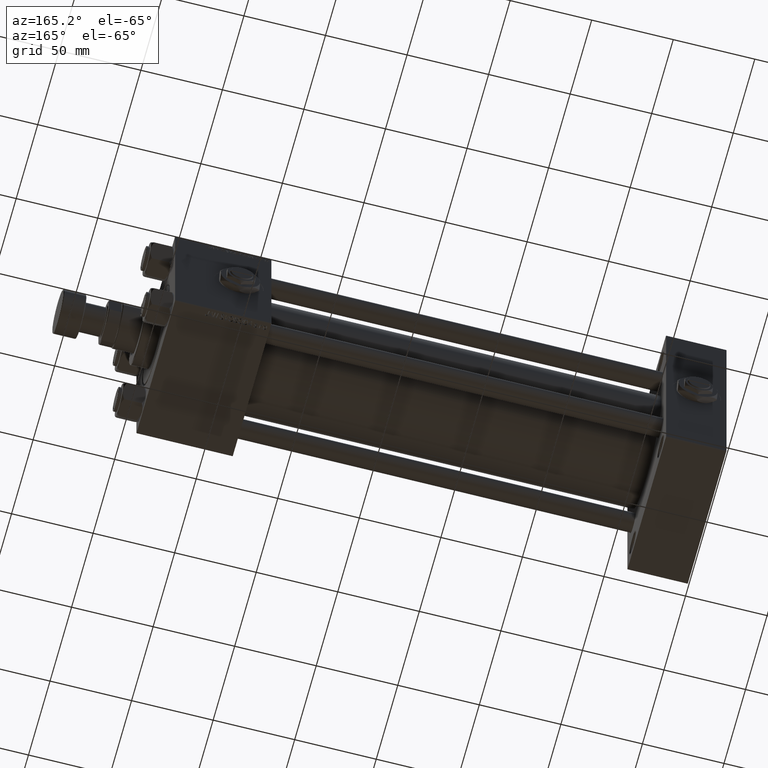
[diagram: clean part render]
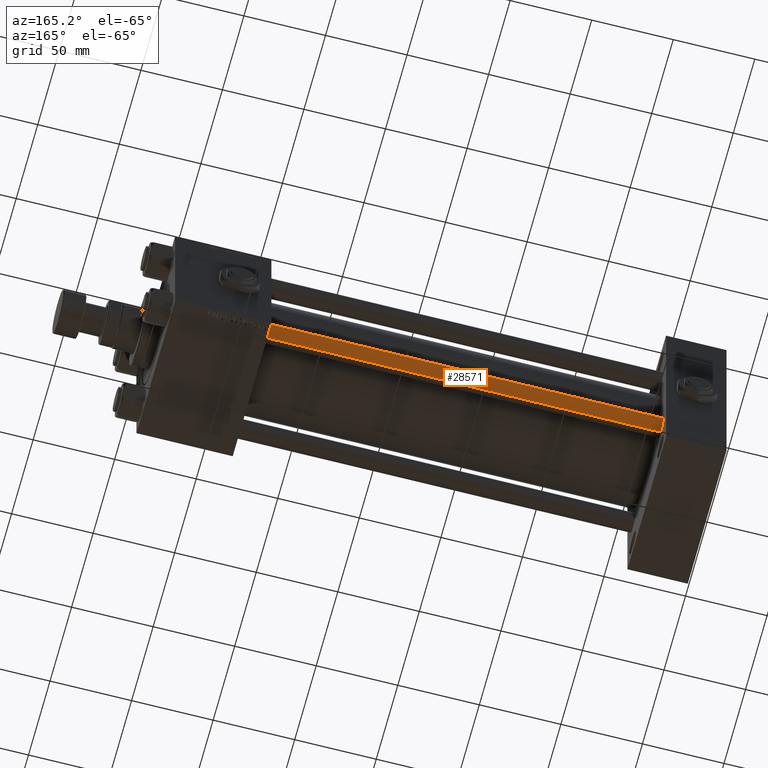
[diagram: same view with one face highlighted and labeled with its STEP entity id]
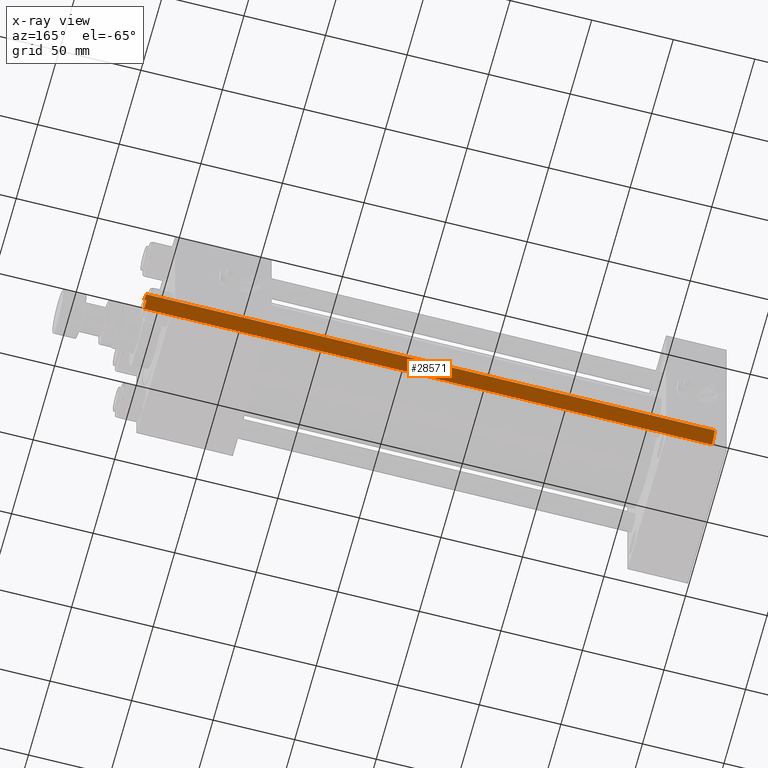
[diagram: x-ray of the same camera — body ghosted, the highlighted face saturated]
A machine part, auxiliary view. The second image highlights one B-rep face of the part: STEP entity #28571.
The next image is the same camera in x-ray: the body ghosted, the highlighted face saturated — about 0% of this face is hidden behind the body in this view.
In plain terms, the highlighted cylindrical surface (edge-blend (fillet) strip) has radius 6 mm, axis along (-1, 0, 0).
Its self-contained STEP definition (entity closure, byte-faithful):
#2530 = VERTEX_POINT ( 'NONE', #52389 ) ;
#4023 = VERTEX_POINT ( 'NONE', #4115 ) ;
#4115 = CARTESIAN_POINT ( 'NONE',  ( -6.000000000000000888, 0.000000000000000000, 348.5000000000000568 ) ) ;
#4772 = DIRECTION ( 'NONE',  ( -1.000000000000000000, 0.000000000000000000, 0.000000000000000000 ) ) ;
#5225 = VECTOR ( 'NONE', #17795, 1000.000000000000000 ) ;
#5925 = DIRECTION ( 'NONE',  ( -0.000000000000000000, -0.000000000000000000, -1.000000000000000000 ) ) ;
#9562 = ORIENTED_EDGE ( 'NONE', *, *, #51594, .F. ) ;
#11846 = EDGE_CURVE ( 'NONE', #29047, #2530, #46317, .T. ) ;
#14383 = DIRECTION ( 'NONE',  ( -0.000000000000000000, -0.000000000000000000, 1.000000000000000000 ) ) ;
#14691 = CARTESIAN_POINT ( 'NONE',  ( -6.000000000000000888, 0.000000000000000000, 349.0000000000000000 ) ) ;
#14944 = AXIS2_PLACEMENT_3D ( 'NONE', #50775, #14383, #46770 ) ;
#17795 = DIRECTION ( 'NONE',  ( -0.000000000000000000, -0.000000000000000000, -1.000000000000000000 ) ) ;
#19167 = AXIS2_PLACEMENT_3D ( 'NONE', #28852, #40286, #48000 ) ;
#19475 = CYLINDRICAL_SURFACE ( 'NONE', #46990, 6.000000000000000888 ) ;
#20018 = ORIENTED_EDGE ( 'NONE', *, *, #31730, .T. ) ;
#20115 = EDGE_CURVE ( 'NONE', #4023, #29047, #42301, .T. ) ;
#20747 = CARTESIAN_POINT ( 'NONE',  ( 6.000000000000000888, 7.347880794884120722E-16, 349.0000000000000000 ) ) ;
#22506 = EDGE_LOOP ( 'NONE', ( #9562, #20018, #45506, #45440 ) ) ;
#23714 = FACE_OUTER_BOUND ( 'NONE', #22506, .T. ) ;
#24740 = LINE ( 'NONE', #20747, #5225 ) ;
#25162 = CARTESIAN_POINT ( 'NONE',  ( -6.000000000000000888, 0.000000000000000000, 0.5000000000000559552 ) ) ;
#27824 = VECTOR ( 'NONE', #5925, 1000.000000000000000 ) ;
#28571 = ADVANCED_FACE ( 'NONE', ( #23714 ), #19475, .T. ) ;
#28852 = CARTESIAN_POINT ( 'NONE',  ( 0.000000000000000000, 0.000000000000000000, 348.5000000000000568 ) ) ;
#28949 = DIRECTION ( 'NONE',  ( -0.000000000000000000, -0.000000000000000000, -1.000000000000000000 ) ) ;
#29047 = VERTEX_POINT ( 'NONE', #25162 ) ;
#30139 = CARTESIAN_POINT ( 'NONE',  ( 6.000000000000000888, 7.347880794884120722E-16, 348.5000000000000568 ) ) ;
#31730 = EDGE_CURVE ( 'NONE', #44700, #4023, #40255, .T. ) ;
#40255 = CIRCLE ( 'NONE', #19167, 6.000000000000000888 ) ;
#40286 = DIRECTION ( 'NONE',  ( 0.000000000000000000, 0.000000000000000000, -1.000000000000000000 ) ) ;
#42301 = LINE ( 'NONE', #14691, #27824 ) ;
#43638 = CARTESIAN_POINT ( 'NONE',  ( 0.000000000000000000, 0.000000000000000000, 349.0000000000000000 ) ) ;
#44700 = VERTEX_POINT ( 'NONE', #30139 ) ;
#45440 = ORIENTED_EDGE ( 'NONE', *, *, #11846, .T. ) ;
#45506 = ORIENTED_EDGE ( 'NONE', *, *, #20115, .T. ) ;
#46317 = CIRCLE ( 'NONE', #14944, 6.000000000000000888 ) ;
#46770 = DIRECTION ( 'NONE',  ( 1.000000000000000000, 0.000000000000000000, 0.000000000000000000 ) ) ;
#46990 = AXIS2_PLACEMENT_3D ( 'NONE', #43638, #28949, #4772 ) ;
#48000 = DIRECTION ( 'NONE',  ( 1.000000000000000000, 0.000000000000000000, 0.000000000000000000 ) ) ;
#50775 = CARTESIAN_POINT ( 'NONE',  ( 0.000000000000000000, 0.000000000000000000, 0.5000000000000559552 ) ) ;
#51594 = EDGE_CURVE ( 'NONE', #44700, #2530, #24740, .T. ) ;
#52389 = CARTESIAN_POINT ( 'NONE',  ( 6.000000000000000888, 7.347880794884120722E-16, 0.5000000000000559552 ) ) ;